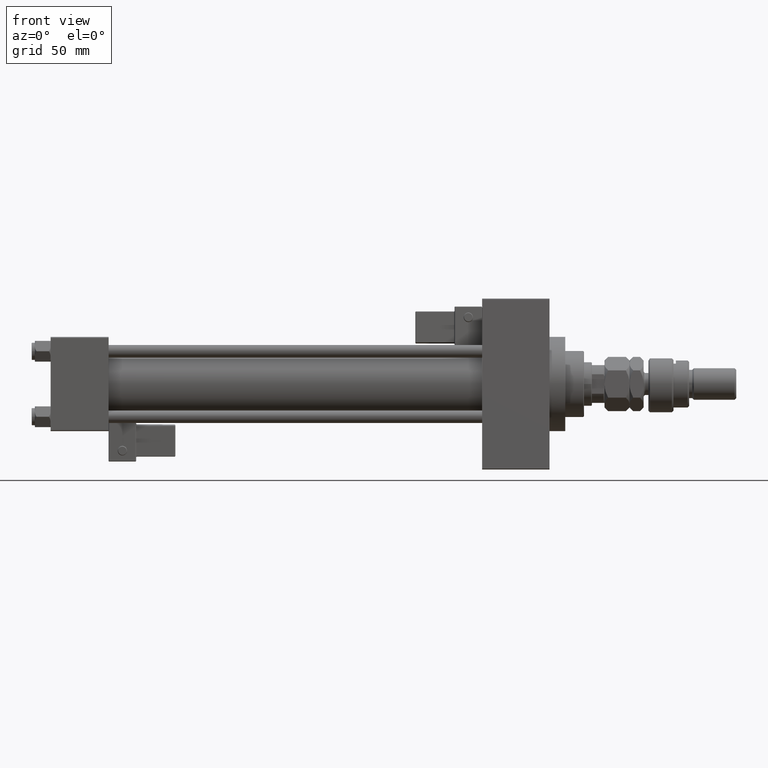
[diagram: clean part render]
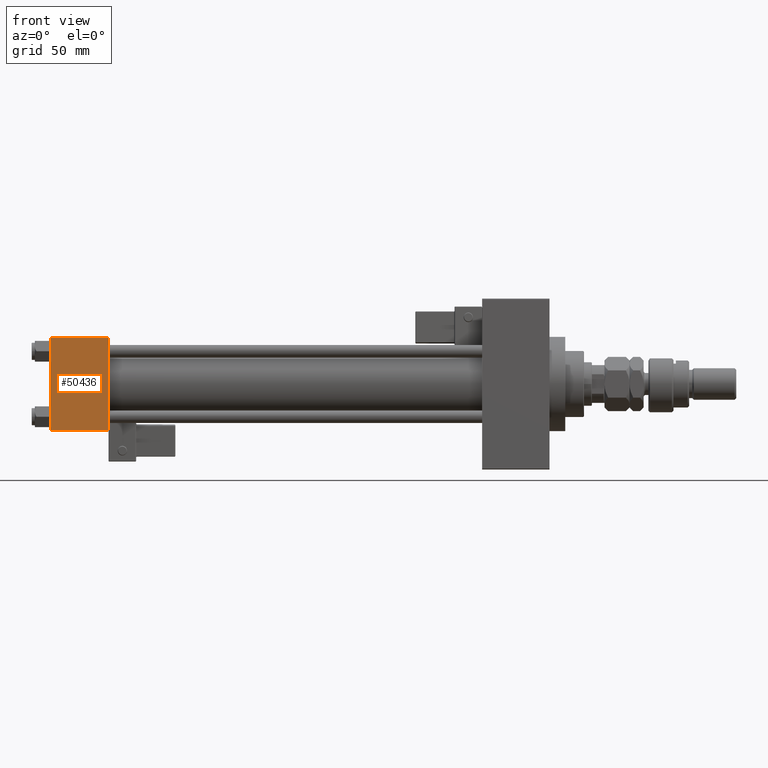
[diagram: same view with one face highlighted and labeled with its STEP entity id]
A machine part, front view. The second image highlights one B-rep face of the part: STEP entity #50436.
In plain terms, the highlighted planar face has unit normal (0, 1, 0).
Its self-contained STEP definition (entity closure, byte-faithful):
#3418 = EDGE_CURVE ( 'NONE', #36661, #9820, #7128, .T. ) ;
#5054 = LINE ( 'NONE', #16790, #19620 ) ;
#7011 = DIRECTION ( 'NONE',  ( 0.000000000000000000, 0.000000000000000000, -1.000000000000000000 ) ) ;
#7128 = LINE ( 'NONE', #36624, #48755 ) ;
#7457 = EDGE_CURVE ( 'NONE', #22708, #9820, #5054, .T. ) ;
#7762 = DIRECTION ( 'NONE',  ( 0.000000000000000000, -0.000000000000000000, 1.000000000000000000 ) ) ;
#9820 = VERTEX_POINT ( 'NONE', #49028 ) ;
#11055 = LINE ( 'NONE', #27286, #11578 ) ;
#11578 = VECTOR ( 'NONE', #35764, 1000.000000000000000 ) ;
#12584 = CARTESIAN_POINT ( 'NONE',  ( 37.00000000000000000, -30.00000000000000000, 29.49999999999999289 ) ) ;
#16790 = CARTESIAN_POINT ( 'NONE',  ( 37.00000000000000000, -30.00000000000000000, 29.99999999999999289 ) ) ;
#16897 = EDGE_CURVE ( 'NONE', #51320, #36661, #26977, .T. ) ;
#19620 = VECTOR ( 'NONE', #26075, 1000.000000000000000 ) ;
#21073 = FACE_OUTER_BOUND ( 'NONE', #51079, .T. ) ;
#22708 = VERTEX_POINT ( 'NONE', #12584 ) ;
#23372 = DIRECTION ( 'NONE',  ( 1.000000000000000000, 0.000000000000000000, 0.000000000000000000 ) ) ;
#25447 = AXIS2_PLACEMENT_3D ( 'NONE', #32239, #52438, #7762 ) ;
#26075 = DIRECTION ( 'NONE',  ( 0.000000000000000000, 0.000000000000000000, -1.000000000000000000 ) ) ;
#26977 = LINE ( 'NONE', #39182, #47158 ) ;
#27286 = CARTESIAN_POINT ( 'NONE',  ( 37.00000000000000000, -30.00000000000000000, 29.49999999999999289 ) ) ;
#32239 = CARTESIAN_POINT ( 'NONE',  ( 37.00000000000000000, -30.00000000000000000, 29.99999999999999289 ) ) ;
#34836 = CARTESIAN_POINT ( 'NONE',  ( 0.000000000000000000, -30.00000000000000000, 29.49999999999999289 ) ) ;
#35764 = DIRECTION ( 'NONE',  ( -1.000000000000000000, 0.000000000000000000, 0.000000000000000000 ) ) ;
#36624 = CARTESIAN_POINT ( 'NONE',  ( 37.00000000000000000, -30.00000000000000000, -29.50000000000001776 ) ) ;
#36661 = VERTEX_POINT ( 'NONE', #46551 ) ;
#39182 = CARTESIAN_POINT ( 'NONE',  ( 0.000000000000000000, -30.00000000000000000, 29.99999999999999289 ) ) ;
#40387 = ORIENTED_EDGE ( 'NONE', *, *, #3418, .T. ) ;
#43072 = EDGE_CURVE ( 'NONE', #22708, #51320, #11055, .T. ) ;
#44191 = PLANE ( 'NONE',  #25447 ) ;
#44959 = ORIENTED_EDGE ( 'NONE', *, *, #16897, .T. ) ;
#45720 = ORIENTED_EDGE ( 'NONE', *, *, #7457, .F. ) ;
#46551 = CARTESIAN_POINT ( 'NONE',  ( 0.000000000000000000, -30.00000000000000000, -29.50000000000001776 ) ) ;
#47158 = VECTOR ( 'NONE', #7011, 1000.000000000000000 ) ;
#47921 = ORIENTED_EDGE ( 'NONE', *, *, #43072, .T. ) ;
#48755 = VECTOR ( 'NONE', #23372, 1000.000000000000000 ) ;
#49028 = CARTESIAN_POINT ( 'NONE',  ( 37.00000000000000000, -30.00000000000000000, -29.50000000000001776 ) ) ;
#50436 = ADVANCED_FACE ( 'NONE', ( #21073 ), #44191, .F. ) ;
#51079 = EDGE_LOOP ( 'NONE', ( #44959, #40387, #45720, #47921 ) ) ;
#51320 = VERTEX_POINT ( 'NONE', #34836 ) ;
#52438 = DIRECTION ( 'NONE',  ( -0.000000000000000000, 1.000000000000000000, 0.000000000000000000 ) ) ;